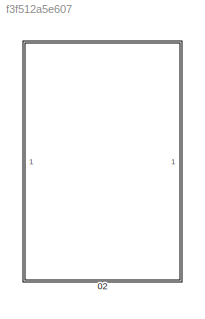
MODEL slx_f3f512a5e607
KIND model
CONFIG AbsTol = auto
CONFIG EnableMultiTasking = off
CONFIG FixedStep = auto
CONFIG InitFcn = R1 = 10e3;\nR2 = 100e3;\nC = 100e-12;
CONFIG MaxStep = auto
CONFIG MinStep = auto
CONFIG RelTol = 1e-3
CONFIG SampleTimeConstraint = Unconstrained
CONFIG SolverName = VariableStepAuto
CONFIG StartTime = 0.0
CONFIG StopTime = 1e-2
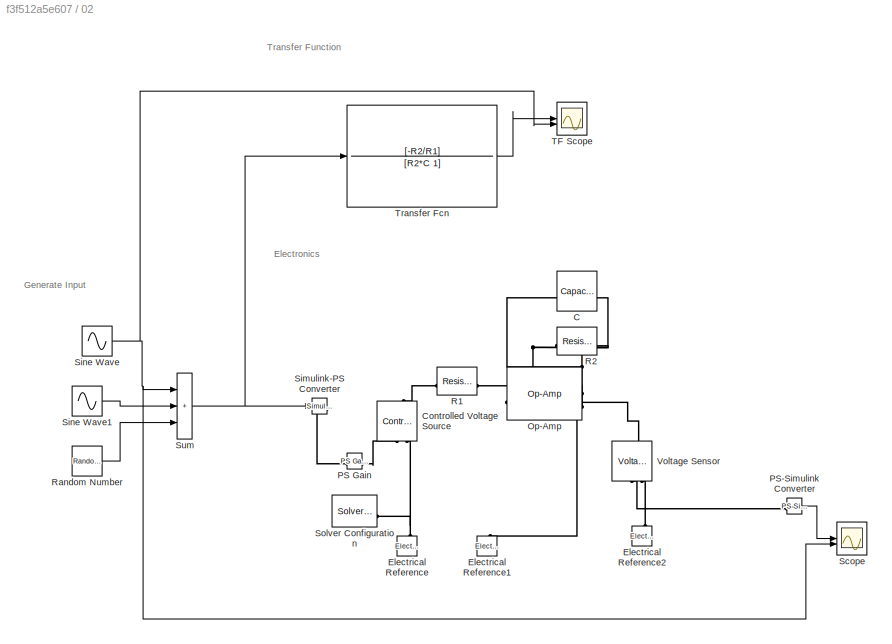
BLOCK [SubSystem] 02
BLOCK [Reference] 02/C  REF=fl_lib/Electrical/Electrical Elements/Capacitor
  SourceBlock = fl_lib/Electrical/Electrical Elements/Capacitor
  SourceType = Capacitor
BLOCK [Reference] 02/Controlled Voltage Source  REF=fl_lib/Electrical/Electrical Sources/Controlled Voltage
Source
  NameLocation = right
  SourceBlock = fl_lib/Electrical/Electrical Sources/Controlled Voltage\nSource
  SourceType = Controlled Voltage\nSource
BLOCK [Reference] 02/Electrical Reference  REF=fl_lib/Electrical/Electrical Elements/Electrical Reference
  NameLocation = right
  SourceBlock = fl_lib/Electrical/Electrical Elements/Electrical Reference
  SourceType = Electrical Reference
BLOCK [Reference] 02/Electrical Reference1  REF=fl_lib/Electrical/Electrical Elements/Electrical Reference
  NameLocation = right
  SourceBlock = fl_lib/Electrical/Electrical Elements/Electrical Reference
  SourceType = Electrical Reference
BLOCK [Reference] 02/Electrical Reference2  REF=fl_lib/Electrical/Electrical Elements/Electrical Reference
  NameLocation = right
  SourceBlock = fl_lib/Electrical/Electrical Elements/Electrical Reference
  SourceType = Electrical Reference
BLOCK [Reference] 02/Op-Amp  REF=fl_lib/Electrical/Electrical Elements/Op-Amp
  SourceBlock = fl_lib/Electrical/Electrical Elements/Op-Amp
  SourceType = Op-Amp
BLOCK [Reference] 02/PS Gain  REF=fl_lib/Physical Signals/Functions/PS Gain
  SourceBlock = fl_lib/Physical Signals/Functions/PS Gain
  SourceType = PS Gain
BLOCK [Reference] 02/PS-Simulink Converter  REF=nesl_utility/PS-Simulink
Converter
  SourceBlock = nesl_utility/PS-Simulink\nConverter
  SourceType = PS-Simulink\nConverter
BLOCK [Reference] 02/R1  REF=fl_lib/Electrical/Electrical Elements/Resistor
  SourceBlock = fl_lib/Electrical/Electrical Elements/Resistor
  SourceType = Resistor
BLOCK [Reference] 02/R2  REF=fl_lib/Electrical/Electrical Elements/Resistor
  SourceBlock = fl_lib/Electrical/Electrical Elements/Resistor
  SourceType = Resistor
BLOCK [RandomNumber] 02/Random Number
  SampleTime = 1e-6
  Variance = 1e-2
BLOCK [Scope] 02/Scope
  Floating = off
  NumInputPorts = 2
  ScopeSpecificationString = Simulink.scopes.TimeScopeBlockCfg('CurrentConfiguration', extmgr.ConfigurationSet(extmgr.Configuration('Core','General UI',true),extmgr.Configuration('Core','Source UI',true),extmgr.Configuration('Sources','WiredSimulink',true,'DataLoggingVariableName','ScopeData1'),extmgr.Configuration('Visuals','Time Domain',true,'SerializedDisplays',{struct('MinYLimReal','-72.60917','MaxYLimReal','72.72399','YL...<+1487ch>
BLOCK [Reference] 02/Simulink-PS Converter  REF=nesl_utility/Simulink-PS
Converter
  SourceBlock = nesl_utility/Simulink-PS\nConverter
  SourceType = Simulink-PS\nConverter
BLOCK [Sin] 02/Sine Wave
  Amplitude = 5
  Frequency = 2*pi*1000
  SampleTime = 0
BLOCK [Sin] 02/Sine Wave1
  Frequency = 2*pi*10000
  SampleTime = 0
BLOCK [Reference] 02/Solver Configuration  REF=nesl_utility/Solver
Configuration
  SourceBlock = nesl_utility/Solver\nConfiguration
  SourceType = Solver\nConfiguration
BLOCK [Sum] 02/Sum
  IconShape = rectangular
  Inputs = +++
BLOCK [Scope] 02/TF Scope
  Floating = off
  NumInputPorts = 2
  ScopeSpecificationString = Simulink.scopes.TimeScopeBlockCfg('CurrentConfiguration', extmgr.ConfigurationSet(extmgr.Configuration('Core','General UI',true),extmgr.Configuration('Core','Source UI',true),extmgr.Configuration('Sources','WiredSimulink',true,'DataLoggingVariableName','ScopeData1'),extmgr.Configuration('Visuals','Time Domain',true,'SerializedDisplays',{struct('MinYLimReal','-72.60917','MaxYLimReal','72.72399','YL...<+1552ch>
BLOCK [TransferFcn] 02/Transfer Fcn
  Denominator = [R2*C 1]
  Numerator = [-R2/R1]
BLOCK [Reference] 02/Voltage Sensor  REF=fl_lib/Electrical/Electrical Sensors/Voltage Sensor
  NameLocation = right
  SourceBlock = fl_lib/Electrical/Electrical Sensors/Voltage Sensor
  SourceType = Voltage Sensor
ANNOTATION 02: Electronics
ANNOTATION 02: Generate Input
ANNOTATION 02: Transfer Function
LINE 02/PS-Simulink Converter:1 -> 02/Scope:1
LINE 02/Random Number:1 -> 02/Sum:3
LINE 02/Sine Wave1:1 -> 02/Sum:2
NET 02/Sine Wave:1 -> 02/Scope:2, 02/Sum:1, 02/TF Scope:2
NET 02/Sum:1 -> 02/Simulink-PS Converter:1, 02/Transfer Fcn:1
LINE 02/Transfer Fcn:1 -> 02/TF Scope:1
PNET net1: 02/C:LConn1 -- 02/Op-Amp:LConn2 -- 02/R1:RConn1 -- 02/R2:LConn1
PNET net2: 02/C:RConn1 -- 02/Op-Amp:RConn1 -- 02/R2:RConn1 -- 02/Voltage Sensor:LConn1
PLINE 02/Controlled Voltage Source:LConn1 -- 02/R1:LConn1
PLINE 02/Controlled Voltage Source:RConn1 -- 02/PS Gain:RConn1
PNET net3: 02/Controlled Voltage Source:RConn2 -- 02/Electrical Reference:LConn1 -- 02/Solver Configuration:RConn1
PLINE 02/Electrical Reference1:LConn1 -- 02/Op-Amp:LConn1
PLINE 02/Electrical Reference2:LConn1 -- 02/Voltage Sensor:RConn2
PLINE 02/PS Gain:LConn1 -- 02/Simulink-PS Converter:RConn1
PLINE 02/PS-Simulink Converter:LConn1 -- 02/Voltage Sensor:RConn1
note: NET lines group one-source signal fan-out (src -> all destinations, sorted); 1:1 wires keep LINE; PNET lines group multi-terminal physical nets as a canonical sorted terminal list (undirected conserving connections); 2-terminal nets keep the pairwise PLINE form
